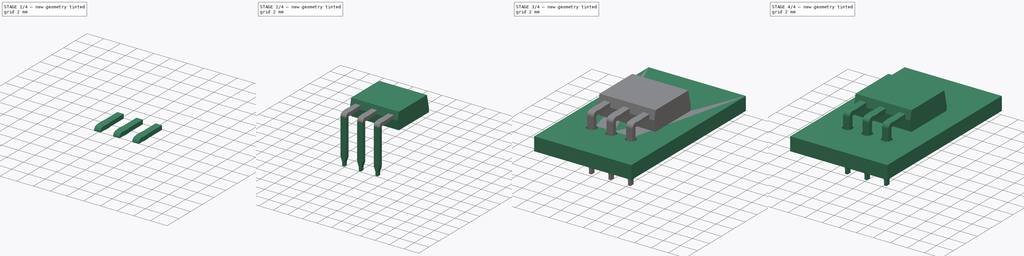
[diagram: build sequence overview — one tinted view per stage of 4, left to right]
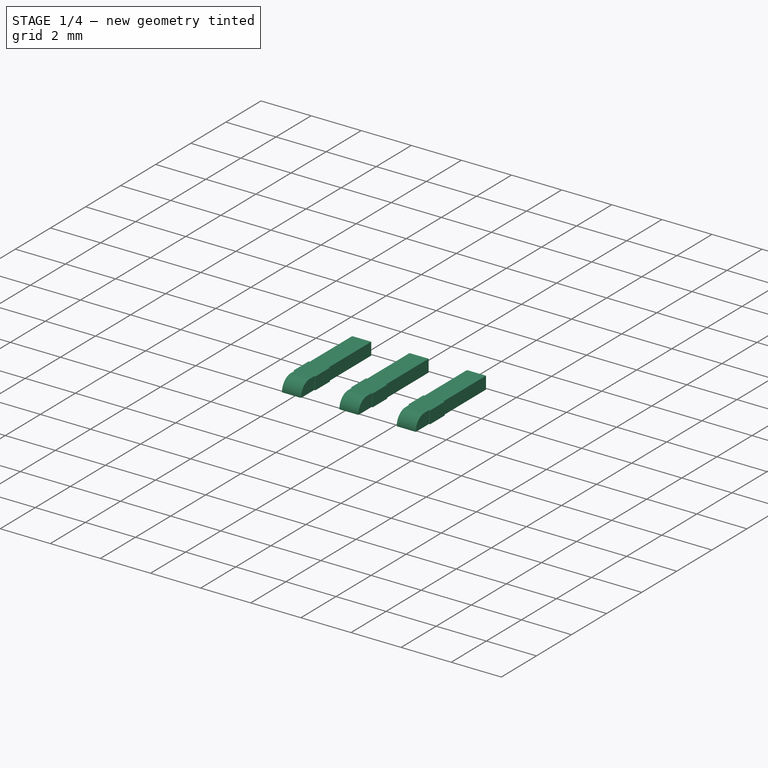
[diagram: stage 1 of 4 — iso view after this stage's code; geometry added in this stage tinted green]
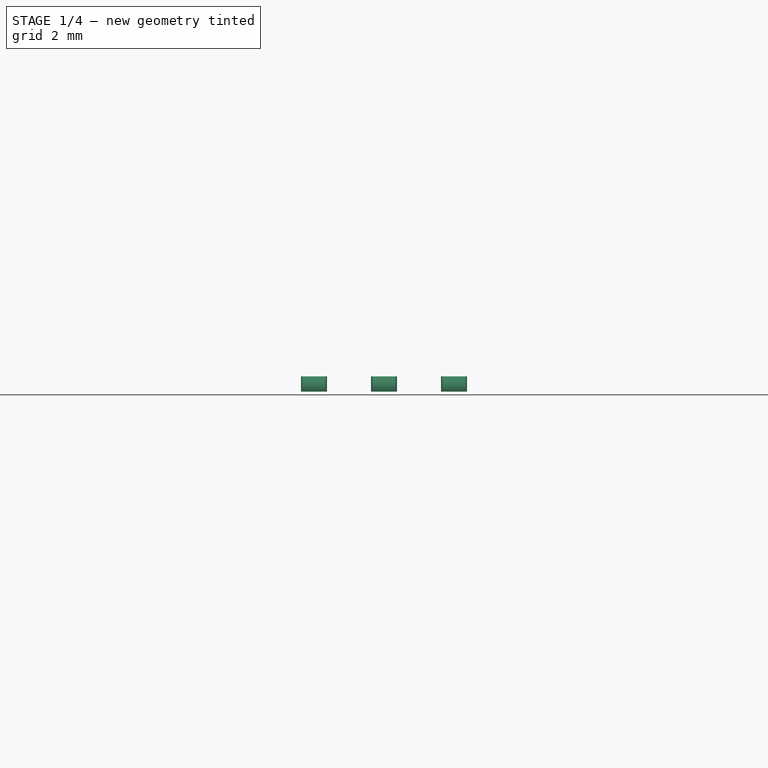
[diagram: stage 1 of 4 — front view after this stage's code; geometry added in this stage tinted green]
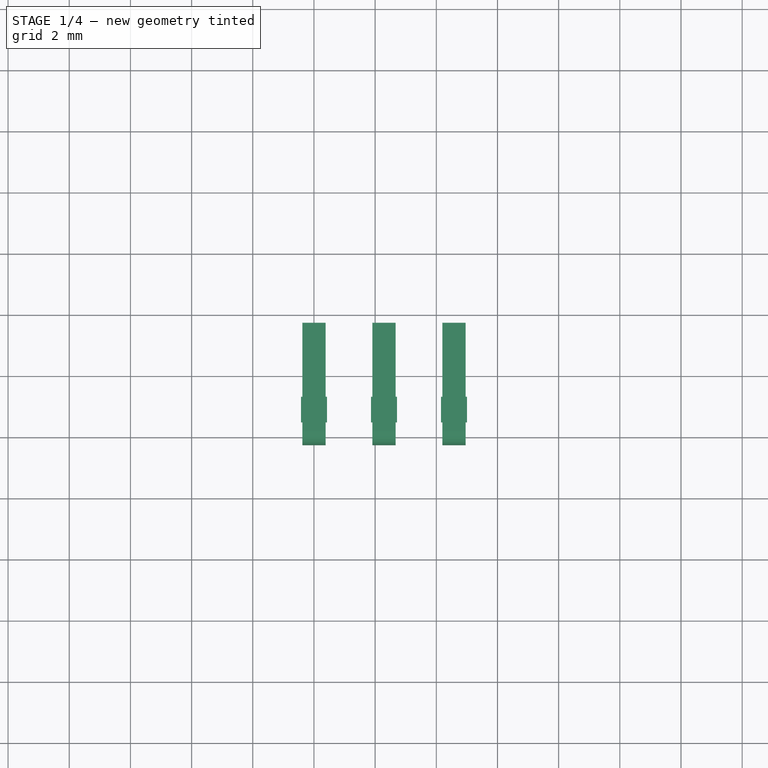
[diagram: stage 1 of 4 — top view after this stage's code; geometry added in this stage tinted green]
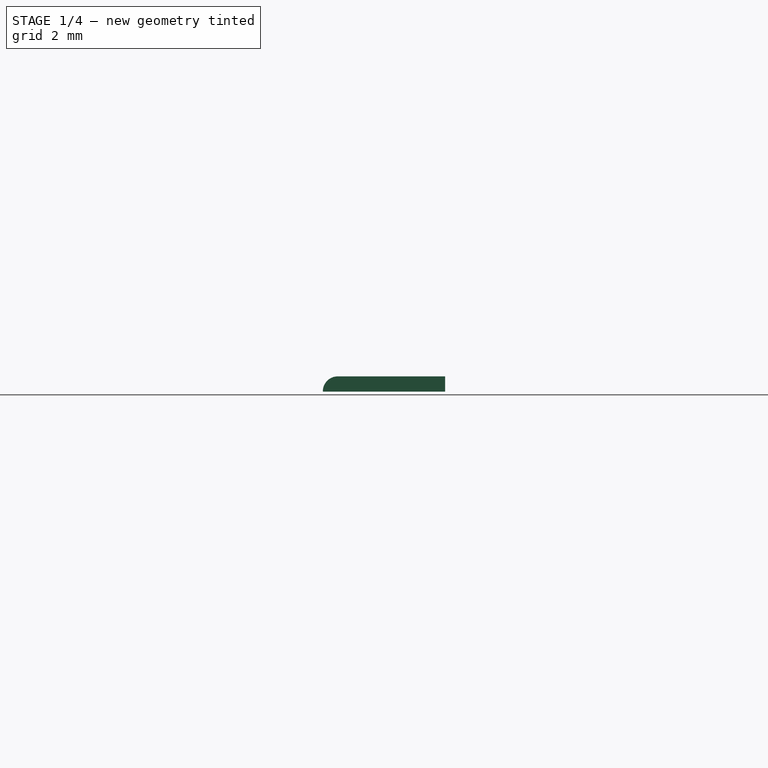
[diagram: stage 1 of 4 — right view after this stage's code; geometry added in this stage tinted green]
FCSTD DOCUMENT  (FreeCAD 0.16R6712 (Git))
Label: TO-251-3-1EP_Horizontal_TabDown
License: All rights reserved
LicenseURL: http://en.wikipedia.org/wiki/All_rights_reserved
objects: Part::FeaturePython×7, Sketcher::SketchObject×4, PartDesign::Pad×4, App::DocumentObjectGroup×1, PartDesign::Fillet×1, Part::MultiFuse×1
note: 21 computed .brp shape members not serialized (recipe doc carries the construction recipe); baked Part::Feature solids carry a one-line shape summary decoded from their .brp

FEATURE [App::DocumentObjectGroup] TO_251_3_1EP_Horizontal_TabDown_fp
  Group = -> [FCrtYd_lines,FFab_lines,Filk_lines,TopPads,BotPads,THPs,newPCB]
FEATURE [Sketcher::SketchObject] Sketch003
  Placement = pos=(0,0,1.27) rot=(0,0,1;3.14159rad)
  sketch-geometry (39):
    g0: LineSegment StartX=-4.96 StartY=0.25 StartZ=0 EndX=-4.2 EndY=0.25 EndZ=0
    g1: LineSegment StartX=-4.2 StartY=0.25 StartZ=0 EndX=-4.2 EndY=-0.5 EndZ=0
    g2: LineSegment StartX=-4.2 StartY=-3.75 StartZ=0 EndX=-4.96 EndY=-3.75 EndZ=0
    g3: LineSegment StartX=-4.96 StartY=-3.75 StartZ=0 EndX=-4.96 EndY=-1.33 EndZ=0
    g4: LineSegment StartX=-2.67 StartY=0.25 StartZ=0 EndX=-1.91 EndY=0.25 EndZ=0
    g5: LineSegment StartX=-1.91 StartY=0.25 StartZ=0 EndX=-1.91 EndY=-0.5 EndZ=0
    g6: LineSegment StartX=-1.91 StartY=-3.75 StartZ=0 EndX=-2.67 EndY=-3.75 EndZ=0
    g7: LineSegment StartX=-2.67 StartY=-3.75 StartZ=0 EndX=-2.67 EndY=-1.33 EndZ=0
    g8: LineSegment StartX=-0.38 StartY=0.25 StartZ=0 EndX=0.38 EndY=0.25 EndZ=0
    g9: LineSegment StartX=0.38 StartY=0.25 StartZ=0 EndX=0.38 EndY=-0.5 EndZ=0
    g10: LineSegment StartX=0.38 StartY=-3.75 StartZ=0 EndX=-0.38 EndY=-3.75 EndZ=0
    g11: LineSegment StartX=-0.38 StartY=-3.75 StartZ=0 EndX=-0.38 EndY=-1.33 EndZ=0
    g12: LineSegment StartX=-5.005 StartY=-0.5 StartZ=0 EndX=-4.96 EndY=-0.5 EndZ=0
    g13: LineSegment StartX=-4.155 StartY=-0.5 StartZ=0 EndX=-4.155 EndY=-1.33 EndZ=0
    g14: LineSegment StartX=-4.155 StartY=-1.33 StartZ=0 EndX=-4.2 EndY=-1.33 EndZ=0
    g15: LineSegment StartX=-5.005 StartY=-1.33 StartZ=0 EndX=-5.005 EndY=-0.5 EndZ=0
    g16: LineSegment StartX=-2.715 StartY=-0.5 StartZ=0 EndX=-2.67 EndY=-0.5 EndZ=0
    g17: LineSegment StartX=-1.865 StartY=-0.5 StartZ=0 EndX=-1.865 EndY=-1.33 EndZ=0
    g18: LineSegment StartX=-1.865 StartY=-1.33 StartZ=0 EndX=-1.91 EndY=-1.33 EndZ=0
    g19: LineSegment StartX=-2.715 StartY=-1.33 StartZ=0 EndX=-2.715 EndY=-0.5 EndZ=0
    g20: LineSegment StartX=-0.425 StartY=-0.5 StartZ=0 EndX=-0.38 EndY=-0.5 EndZ=0
    g21: LineSegment StartX=0.425 StartY=-0.5 StartZ=0 EndX=0.425 EndY=-1.33 EndZ=0
    g22: LineSegment StartX=0.425 StartY=-1.33 StartZ=0 EndX=0.38 EndY=-1.33 EndZ=0
    g23: LineSegment StartX=-0.425 StartY=-1.33 StartZ=0 EndX=-0.425 EndY=-0.5 EndZ=0
    g24: LineSegment StartX=0.38 StartY=-0.5 StartZ=0 EndX=0.425 EndY=-0.5 EndZ=0
    g25: LineSegment StartX=-1.91 StartY=-0.5 StartZ=0 EndX=-1.865 EndY=-0.5 EndZ=0
    g26: LineSegment StartX=-4.2 StartY=-0.5 StartZ=0 EndX=-4.155 EndY=-0.5 EndZ=0
    g27: LineSegment StartX=-4.96 StartY=-1.33 StartZ=0 EndX=-5.005 EndY=-1.33 EndZ=0
    g28: LineSegment StartX=-2.67 StartY=-1.33 StartZ=0 EndX=-2.715 EndY=-1.33 EndZ=0
    g29: LineSegment StartX=-0.38 StartY=-1.33 StartZ=0 EndX=-0.425 EndY=-1.33 EndZ=0
    g30: LineSegment StartX=0.38 StartY=-1.33 StartZ=0 EndX=0.38 EndY=-3.75 EndZ=0
    g31: LineSegment StartX=-0.38 StartY=-0.5 StartZ=0 EndX=-0.38 EndY=0.25 EndZ=0
    g32: LineSegment StartX=-1.91 StartY=-1.33 StartZ=0 EndX=-1.91 EndY=-3.75 EndZ=0
    g33: LineSegment StartX=-2.67 StartY=-0.5 StartZ=0 EndX=-2.67 EndY=0.25 EndZ=0
    g34: LineSegment StartX=-4.2 StartY=-1.33 StartZ=0 EndX=-4.2 EndY=-3.75 EndZ=0
    g35: LineSegment StartX=-4.96 StartY=-0.5 StartZ=0 EndX=-4.96 EndY=0.25 EndZ=0
    g36: LineSegment [constr] StartX=-4.2 StartY=0.25 StartZ=0 EndX=-2.67 EndY=0.25 EndZ=0
    g37: LineSegment [constr] StartX=-1.91 StartY=0.25 StartZ=0 EndX=-0.38 EndY=0.25 EndZ=0
    g38: LineSegment [constr] StartX=0 StartY=0.25 StartZ=0 EndX=0 EndY=0 EndZ=0
  constraints (103):
    c: Coincident(g0,g1)
    c: Coincident(g34,g2)
    c: Coincident(g2,g3)
    c: Coincident(g35,g0)
    c: Horizontal(g0)
    c: Horizontal(g2)
    c: Vertical(g1)
    c: Vertical(g3)
    c: Coincident(g4,g5)
    c: Coincident(g32,g6)
    c: Coincident(g6,g7)
    c: Coincident(g33,g4)
    c: Horizontal(g4)
    c: Horizontal(g6)
    c: Vertical(g5)
    c: Vertical(g7)
    c: Coincident(g8,g9)
    c: Coincident(g30,g10)
    c: Coincident(g10,g11)
    c: Coincident(g31,g8)
    c: Horizontal(g8)
    c: Horizontal(g10)
    c: Vertical(g9)
    c: Vertical(g11)
    c: Equal(g3,g7)
    c: Equal(g7,g11)
    c: DistanceY(g3,g35) = 4
    c: Coincident(g26,g13)
    c: Coincident(g13,g14)
    c: Coincident(g27,g15)
    c: Coincident(g15,g12)
    c: Horizontal(g12)
    c: Horizontal(g14)
    c: Vertical(g13)
    c: Vertical(g15)
    c: Coincident(g25,g17)
    c: Coincident(g17,g18)
    c: Coincident(g28,g19)
    c: Coincident(g19,g16)
    c: Horizontal(g16)
    c: Horizontal(g18)
    c: Vertical(g17)
    c: Vertical(g19)
    c: Coincident(g24,g21)
    c: Coincident(g21,g22)
    c: Coincident(g29,g23)
    c: Coincident(g23,g20)
    c: Horizontal(g20)
    c: Horizontal(g22)
    c: Vertical(g21)
    c: Vertical(g23)
    c: Tangent(g20,g24)
    c: Tangent(g16,g25)
    c: Tangent(g12,g26)
    c: Tangent(g14,g27)
    c: Tangent(g18,g28)
    c: Tangent(g22,g29)
    c: Coincident(g9,g24)
    c: Coincident(g30,g22)
    c: Tangent(g9,g30)
    c: Coincident(g11,g29)
    c: Coincident(g31,g20)
    c: Tangent(g11,g31)
    c: Coincident(g5,g25)
    c: Coincident(g32,g18)
    c: Tangent(g5,g32)
    c: Coincident(g7,g28)
    c: Coincident(g33,g16)
    c: Tangent(g7,g33)
    c: Coincident(g1,g26)
    c: Coincident(g34,g14)
    c: Tangent(g1,g34)
    c: Coincident(g3,g27)
    c: Coincident(g35,g12)
    c: Tangent(g3,g35)
    c: Equal(g26,g12)
    c: Equal(g12,g16)
    c: Equal(g16,g25)
    c: Equal(g25,g20)
    c: Equal(g20,g24)
    c: DistanceX(g15,g13) = 0.85
    c: DistanceY(g15,g15) = 0.83
    c: DistanceX(g0,g4) = 2.29
    c: DistanceX(g4,g8) = 2.29
    c: Coincident(g36,g0)
    c: Horizontal(g36)
    c: Coincident(g37,g4)
    c: Coincident(g37,g8)
    c: Horizontal(g37)
    c: Coincident(g4,g36)
    c: Equal(g19,g15)
    c: Equal(g15,g23)
    c: Equal(g31,g33)
    c: Equal(g33,g35)
    c: PointOnObject(g38,g8)
    c: Coincident(g38,g-1)
    c: Vertical(g38)
    c: Symmetric(g8,g8,g38)
    c: DistanceY(g38,g38) = 0.25
    c: DistanceY(g35,g35) = 0.75
    c: DistanceX(g0,g0) = 0.76
    c: Equal(g0,g4)
    c: Equal(g4,g8)
FEATURE [PartDesign::Pad] Pad003
  Length = 0.5
  Length2 = 100
  Placement = pos=(0,0,1.27) rot=(0,0,1;3.14159rad)
  Sketch = -> Sketch003
  Type = 0
FEATURE [PartDesign::Fillet] Fillet
  Base = -> Pad003 [Edge40,Edge76,Edge4]
  Placement = pos=(0,0,1.27) rot=(0,0,1;3.14159rad)
  Radius = 0.49
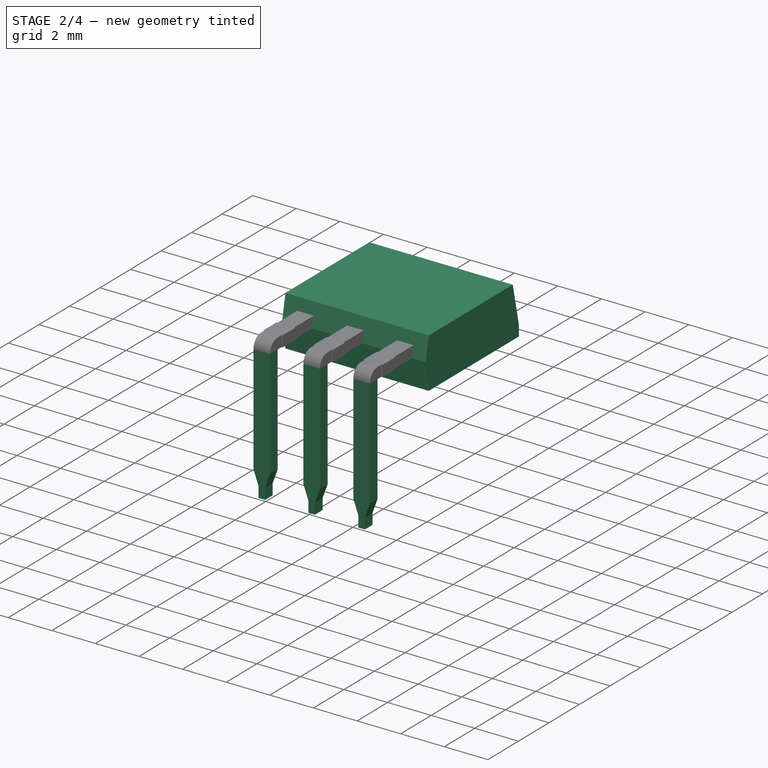
[diagram: stage 2 of 4 — iso view after this stage's code; geometry added in this stage tinted green]
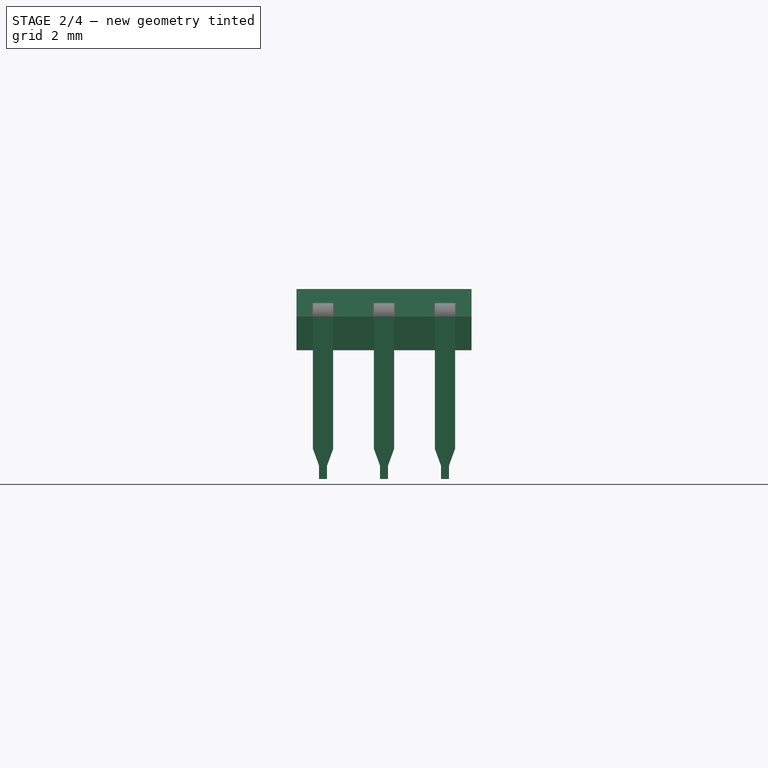
[diagram: stage 2 of 4 — front view after this stage's code; geometry added in this stage tinted green]
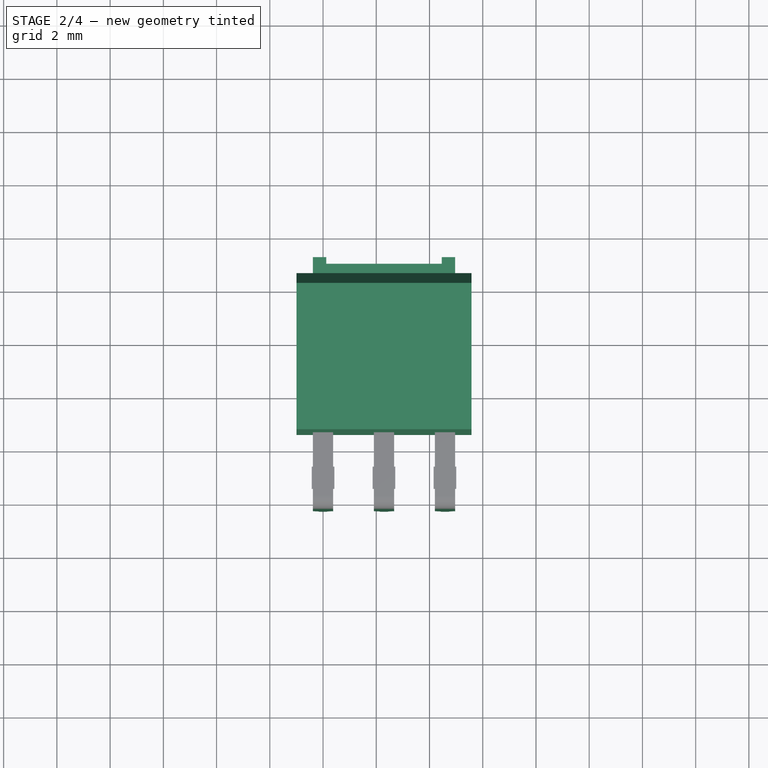
[diagram: stage 2 of 4 — top view after this stage's code; geometry added in this stage tinted green]
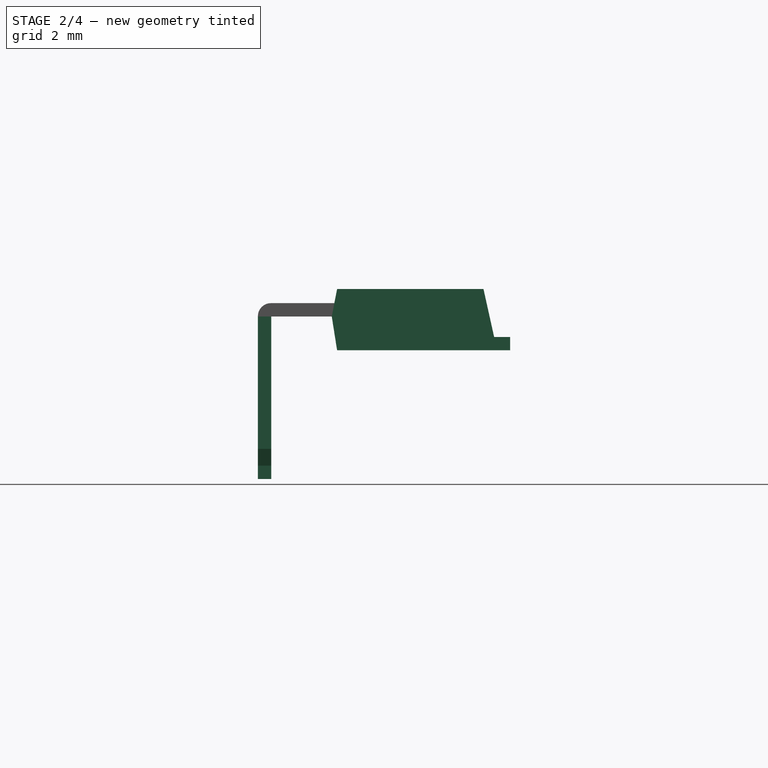
[diagram: stage 2 of 4 — right view after this stage's code; geometry added in this stage tinted green]
FEATURE [Sketcher::SketchObject] Sketch
  Placement = pos=(0,0,0) rot=(1,0,0;1.5708rad)
  sketch-geometry (40):
    g0: LineSegment StartX=0.38 StartY=1.27 StartZ=0 EndX=0.38 EndY=-3.70308 EndZ=0
    g1: LineSegment StartX=-0.38 StartY=-3.70308 StartZ=0 EndX=-0.38 EndY=1.27 EndZ=0
    g2: LineSegment StartX=0.15 StartY=-4.335 StartZ=0 EndX=0.15 EndY=-4.835 EndZ=0
    g3: LineSegment StartX=0.15 StartY=-4.835 StartZ=0 EndX=-0.15 EndY=-4.835 EndZ=0
    g4: LineSegment StartX=-0.15 StartY=-4.835 StartZ=0 EndX=-0.15 EndY=-4.335 EndZ=0
    g5: LineSegment StartX=-0.38 StartY=-3.70308 StartZ=0 EndX=-0.15 EndY=-4.335 EndZ=0
    g6: LineSegment StartX=0.38 StartY=-3.70308 StartZ=0 EndX=0.15 EndY=-4.335 EndZ=0
    g7: LineSegment [constr] StartX=0 StartY=-4.835 StartZ=0 EndX=0 EndY=1.27 EndZ=0
    g8: LineSegment [constr] StartX=-0.38 StartY=-3.70308 StartZ=0 EndX=0.38 EndY=-3.70308 EndZ=0
    g9: LineSegment [constr] StartX=-0.15 StartY=-4.335 StartZ=0 EndX=0.15 EndY=-4.335 EndZ=0
    g10: GeomPoint [constr] X=0 Y=-3.70308 Z=0
    g11: LineSegment StartX=2.67 StartY=1.27 StartZ=0 EndX=2.67 EndY=-3.70308 EndZ=0
    g12: LineSegment StartX=1.91 StartY=-3.70308 StartZ=0 EndX=1.91 EndY=1.27 EndZ=0
    g13: LineSegment StartX=2.44 StartY=-4.335 StartZ=0 EndX=2.44 EndY=-4.835 EndZ=0
    g14: LineSegment StartX=2.44 StartY=-4.835 StartZ=0 EndX=2.14 EndY=-4.835 EndZ=0
    g15: LineSegment StartX=2.14 StartY=-4.835 StartZ=0 EndX=2.14 EndY=-4.335 EndZ=0
    g16: LineSegment StartX=1.91 StartY=-3.70308 StartZ=0 EndX=2.14 EndY=-4.335 EndZ=0
    g17: LineSegment StartX=2.67 StartY=-3.70308 StartZ=0 EndX=2.44 EndY=-4.335 EndZ=0
    g18: LineSegment [constr] StartX=2.29 StartY=-4.835 StartZ=0 EndX=2.29 EndY=1.27 EndZ=0
    g19: LineSegment [constr] StartX=1.91 StartY=-3.70308 StartZ=0 EndX=2.67 EndY=-3.70308 EndZ=0
    g20: LineSegment [constr] StartX=2.14 StartY=-4.335 StartZ=0 EndX=2.44 EndY=-4.335 EndZ=0
    g21: GeomPoint [constr] X=2.29 Y=-3.70308 Z=0
    g22: LineSegment [constr] StartX=0 StartY=-4.835 StartZ=0 EndX=2.29 EndY=-4.835 EndZ=0
    g23: LineSegment StartX=4.96 StartY=1.27 StartZ=0 EndX=4.96 EndY=-3.70308 EndZ=0
    g24: LineSegment StartX=4.2 StartY=-3.70308 StartZ=0 EndX=4.2 EndY=1.27 EndZ=0
    g25: LineSegment StartX=4.73 StartY=-4.335 StartZ=0 EndX=4.73 EndY=-4.835 EndZ=0
    g26: LineSegment StartX=4.73 StartY=-4.835 StartZ=0 EndX=4.43 EndY=-4.835 EndZ=0
    g27: LineSegment StartX=4.43 StartY=-4.835 StartZ=0 EndX=4.43 EndY=-4.335 EndZ=0
    g28: LineSegment StartX=4.2 StartY=-3.70308 StartZ=0 EndX=4.43 EndY=-4.335 EndZ=0
    g29: LineSegment StartX=4.96 StartY=-3.70308 StartZ=0 EndX=4.73 EndY=-4.335 EndZ=0
    g30: LineSegment [constr] StartX=4.58 StartY=-4.835 StartZ=0 EndX=4.58 EndY=1.27 EndZ=0
    g31: LineSegment [constr] StartX=4.2 StartY=-3.70308 StartZ=0 EndX=4.96 EndY=-3.70308 EndZ=0
    g32: LineSegment [constr] StartX=4.43 StartY=-4.335 StartZ=0 EndX=4.73 EndY=-4.335 EndZ=0
    g33: GeomPoint [constr] X=4.58 Y=-3.70308 Z=0
    g34: LineSegment [constr] StartX=2.29 StartY=-4.835 StartZ=0 EndX=4.58 EndY=-4.835 EndZ=0
    g35: LineSegment [constr] StartX=0 StartY=1.27 StartZ=0 EndX=2.29 EndY=1.27 EndZ=0
    g36: LineSegment [constr] StartX=4.58 StartY=1.27 StartZ=0 EndX=2.29 EndY=1.27 EndZ=0
    g37: LineSegment StartX=0.38 StartY=1.27 StartZ=0 EndX=-0.38 EndY=1.27 EndZ=0
    g38: LineSegment StartX=1.91 StartY=1.27 StartZ=0 EndX=2.67 EndY=1.27 EndZ=0
    g39: LineSegment StartX=4.2 StartY=1.27 StartZ=0 EndX=4.96 EndY=1.27 EndZ=0
  constraints (107):
    c: Vertical(g0)
    c: Vertical(g1)
    c: Coincident(g2,g3)
    c: Coincident(g3,g4)
    c: Horizontal(g3)
    c: Vertical(g2)
    c: Vertical(g4)
    c: Coincident(g6,g0)
    c: Coincident(g1,g5)
    c: PointOnObject(g7,g3)
    c: Symmetric(g3,g3,g7)
    c: Coincident(g4,g5)
    c: Coincident(g2,g6)
    c: Coincident(g8,g1)
    c: Horizontal(g8)
    c: Coincident(g9,g4)
    c: Horizontal(g9)
    c: PointOnObject(g10,g7)
    c: Coincident(g2,g9)
    c: Symmetric(g8,g8,g10)
    c: DistanceX(g8,g8) = 0.76
    c: DistanceY(g7,g-1) = 4.835
    c: DistanceY(g4,g4) = 0.5
    c: DistanceX(g3,g3) = 0.3
    c: Angle(g0,g6) = 2.79253
    c: Coincident(g8,g0)
    c: Vertical(g11)
    c: Vertical(g12)
    c: Coincident(g13,g14)
    c: Coincident(g14,g15)
    c: Horizontal(g14)
    c: Vertical(g13)
    c: Vertical(g15)
    c: Coincident(g17,g11)
    c: Coincident(g12,g16)
    c: PointOnObject(g18,g14)
    c: Symmetric(g14,g14,g18)
    c: Coincident(g15,g16)
    c: Coincident(g13,g17)
    c: Coincident(g19,g12)
    c: Horizontal(g19)
    c: Coincident(g20,g15)
    c: Horizontal(g20)
    c: PointOnObject(g21,g18)
    c: Coincident(g13,g20)
    c: Symmetric(g19,g19,g21)
    c: Equal(g8,g19) = 0.76
    c: Equal(g4,g15) = 0.5
    c: Equal(g3,g14) = 0.3
    c: Coincident(g19,g11)
    c: Coincident(g22,g7)
    c: Coincident(g22,g18)
    c: Horizontal(g22)
    c: DistanceX(g22,g22) = 2.29
    c: Equal(g0,g11)
    c: DistanceX(g18,g33) = 2.29
    c: Vertical(g23)
    c: Vertical(g24)
    c: Coincident(g25,g26)
    c: Coincident(g26,g27)
    c: Horizontal(g26)
    c: Vertical(g25)
    c: Vertical(g27)
    c: Coincident(g29,g23)
    c: Coincident(g24,g28)
    c: PointOnObject(g30,g26)
    c: Symmetric(g26,g26,g30)
    c: Coincident(g27,g28)
    c: Coincident(g25,g29)
    c: Coincident(g31,g24)
    c: Horizontal(g31)
    c: Coincident(g32,g27)
    c: Horizontal(g32)
    c: PointOnObject(g33,g30)
    c: Coincident(g25,g32)
    c: Symmetric(g31,g31,g33)
    c: Coincident(g31,g23)
    c: Coincident(g34,g18)
    c: Coincident(g30,g34)
    c: Horizontal(g34)
    c: Equal(g15,g27)
    c: Equal(g24,g12)
    c: Equal(g28,g16)
    c: Equal(g32,g20)
    c: Vertical(g7)
    c: Vertical(g18)
    c: Vertical(g30)
    c: Coincident(g35,g7)
    c: Coincident(g35,g18)
    c: Horizontal(g35)
    c: Coincident(g36,g30)
    c: Coincident(g36,g18)
    c: Horizontal(g36)
    c: DistanceY(g-1,g7) = 1.27
    c: PointOnObject(g37,g35)
    c: Horizontal(g37)
    c: PointOnObject(g38,g35)
    c: PointOnObject(g38,g36)
    c: Horizontal(g39)
    c: Coincident(g23,g39)
    c: Coincident(g24,g39)
    c: Coincident(g12,g38)
    c: Coincident(g11,g38)
    c: PointOnObject(g30,g39)
    c: Coincident(g0,g37)
    c: Coincident(g1,g37)
    c: PointOnObject(g7,g-2)
FEATURE [PartDesign::Pad] Pad
  Length = 0.5
  Length2 = 100
  Midplane = true
  Placement = pos=(0,0,0) rot=(1,0,0;1.5708rad)
  Reversed = true
  Sketch = -> Sketch
  Type = 0
FEATURE [Sketcher::SketchObject] Sketch001
  Placement = pos=(2.29,0.3,1.27) rot=(0,1,0;1.5708rad)
  expr: Constraints[15] = (5.9 + 6.3) / 2
  sketch-geometry (7):
    g0: LineSegment StartX=0 StartY=2.225 StartZ=0 EndX=-1.03 EndY=2.425 EndZ=0
    g1: LineSegment StartX=-1.03 StartY=2.425 StartZ=0 EndX=-1.03 EndY=7.925 EndZ=0
    g2: LineSegment StartX=-1.03 StartY=7.925 StartZ=0 EndX=0.77 EndY=8.325 EndZ=0
    g3: LineSegment StartX=0.77 StartY=8.325 StartZ=0 EndX=1.27 EndY=8.325 EndZ=0
    g4: LineSegment StartX=1.27 StartY=8.325 StartZ=0 EndX=1.27 EndY=2.425 EndZ=0
    g5: LineSegment StartX=1.27 StartY=2.425 StartZ=0 EndX=0 EndY=2.225 EndZ=0
    g6: LineSegment [constr] StartX=-1.03 StartY=2.425 StartZ=0 EndX=1.27 EndY=2.425 EndZ=0
  constraints (20):
    c: PointOnObject(g0,g-2)
    c: Coincident(g1,g0)
    c: Vertical(g1)
    c: Coincident(g2,g1)
    c: Horizontal(g3)
    c: Coincident(g4,g3)
    c: Vertical(g4)
    c: Coincident(g5,g4)
    c: Coincident(g5,g0)
    c: Coincident(g6,g0)
    c: Coincident(g6,g4)
    c: Horizontal(g6)
    c: DistanceX(g0,g4) = 1.27
    c: DistanceX(g1,g3) = 2.3
    c: DistanceY(g0,g4) = 0.2
    c: DistanceY(g0,g3) = 6.1
    c: Coincident(g2,g3)
    c: DistanceY(g-1,g0) = 2.225
    c: DistanceX(g3,g3) = 0.5
    c: DistanceY(g1,g2) = 0.4
FEATURE [PartDesign::Pad] Pad001
  Length = 6.575
  Length2 = 100
  Midplane = true
  Placement = pos=(2.29,0.3,1.27) rot=(0,1,0;1.5708rad)
  Sketch = -> Sketch001
  Type = 0
  expr: Length = (6.35 + 6.8) / 2
FEATURE [Sketcher::SketchObject] Sketch002
  Placement = pos=(0,0.3,0) rot=(0,0,1;0rad)
  expr: Constraints[29] = (5.9 + 6.3) / 2 + (0.5 + 1.27) / 2 + (1.6 + 2.28) / 2
  sketch-geometry (11):
    g0: LineSegment StartX=4.96 StartY=8.925 StartZ=0 EndX=4.96 EndY=3.925 EndZ=0
    g1: LineSegment StartX=4.96 StartY=3.925 StartZ=0 EndX=-0.38 EndY=3.925 EndZ=0
    g2: LineSegment StartX=-0.38 StartY=3.925 StartZ=0 EndX=-0.38 EndY=8.925 EndZ=0
    g3: LineSegment StartX=-0.38 StartY=8.925 StartZ=0 EndX=0.12 EndY=8.925 EndZ=0
    g4: LineSegment StartX=0.12 StartY=8.925 StartZ=0 EndX=0.12 EndY=8.675 EndZ=0
    g5: LineSegment StartX=0.12 StartY=8.675 StartZ=0 EndX=4.46 EndY=8.675 EndZ=0
    g6: LineSegment StartX=4.46 StartY=8.675 StartZ=0 EndX=4.46 EndY=8.925 EndZ=0
    g7: LineSegment StartX=4.46 StartY=8.925 StartZ=0 EndX=4.96 EndY=8.925 EndZ=0
    g8: GeomPoint [constr] X=2.29 Y=8.925 Z=0
    g9: LineSegment [constr] StartX=2.29 StartY=8.925 StartZ=0 EndX=0 EndY=8.925 EndZ=0
    g10: LineSegment [constr] StartX=-0.38 StartY=8.925 StartZ=0 EndX=4.96 EndY=8.925 EndZ=0
  constraints (30):
    c: Coincident(g0,g1)
    c: Coincident(g1,g2)
    c: Horizontal(g1)
    c: Vertical(g0)
    c: Vertical(g2)
    c: Coincident(g4,g3)
    c: Coincident(g5,g4)
    c: Horizontal(g5)
    c: Coincident(g6,g5)
    c: Coincident(g7,g6)
    c: Vertical(g4)
    c: Vertical(g6)
    c: Symmetric(g2,g0,g8)
    c: Equal(g3,g7)
    c: Coincident(g9,g8)
    c: PointOnObject(g9,g-2)
    c: Horizontal(g9)
    c: PointOnObject(g3,g9)
    c: Coincident(g3,g2)
    c: Coincident(g7,g0)
    c: Coincident(g10,g2)
    c: Coincident(g10,g0)
    c: Horizontal(g10)
    c: DistanceX(g9,g9) = 2.29
    c: PointOnObject(g6,g10)
    c: DistanceX(g2,g0) = 5.34
    c: DistanceX(g7,g7) = 0.5
    c: DistanceY(g6,g6) = 0.25
    c: DistanceY(g0,g0) = 5
    c: DistanceY(g-1,g2) = 8.925
FEATURE [PartDesign::Pad] Pad002
  Length = 0.5
  Length2 = 100
  Placement = pos=(0,0.3,0) rot=(0,0,1;0rad)
  Sketch = -> Sketch002
  Type = 0
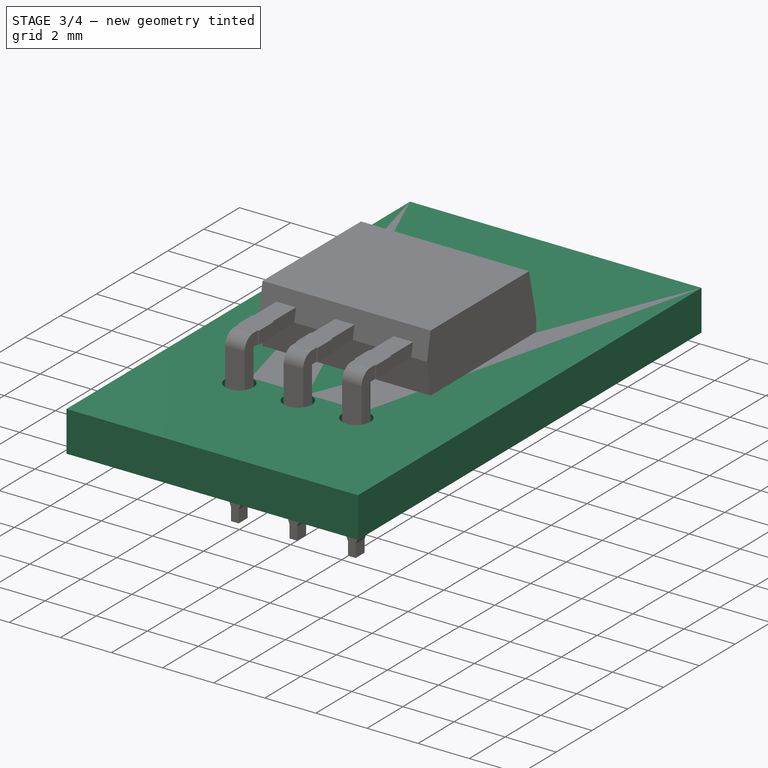
[diagram: stage 3 of 4 — iso view after this stage's code; geometry added in this stage tinted green]
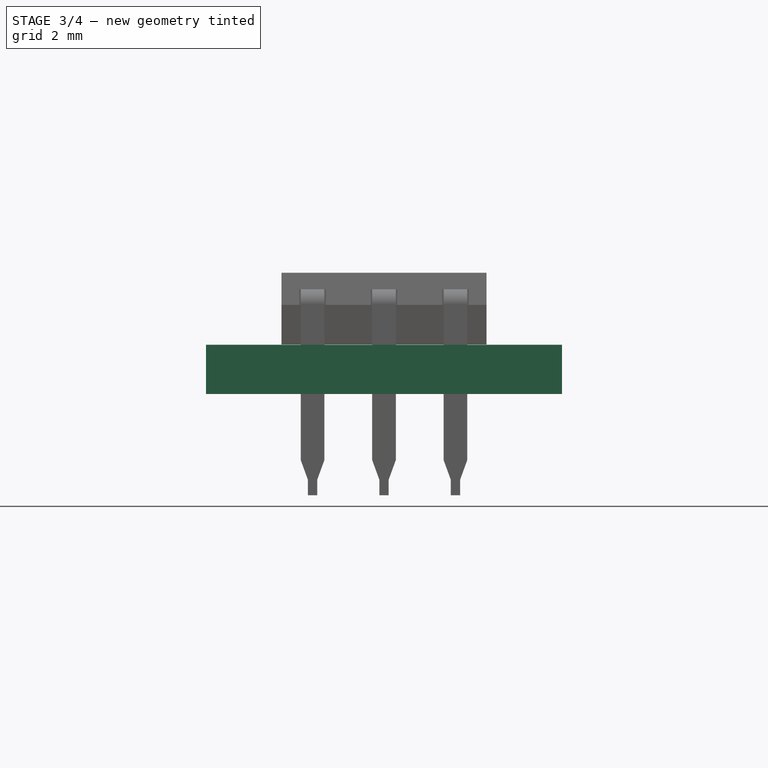
[diagram: stage 3 of 4 — front view after this stage's code; geometry added in this stage tinted green]
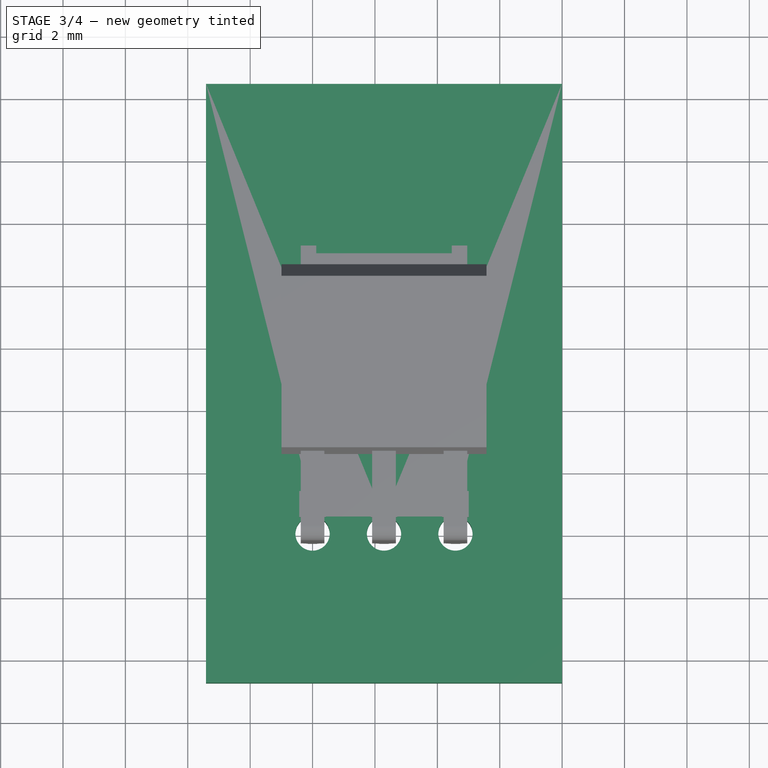
[diagram: stage 3 of 4 — top view after this stage's code; geometry added in this stage tinted green]
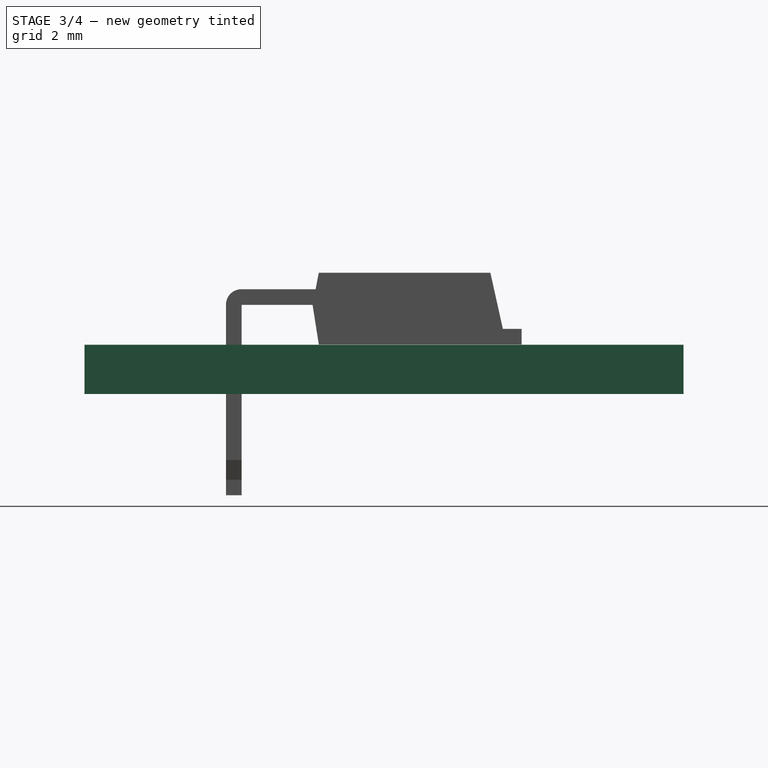
[diagram: stage 3 of 4 — right view after this stage's code; geometry added in this stage tinted green]
FEATURE [Part::FeaturePython] THPs  label="PTHs"  # a2plus imported part (geometry in sourceFile) (typed FeaturePython)
  fixedPosition = true
FEATURE [Part::FeaturePython] newPCB  label="Pcb"  # a2plus imported part (geometry in sourceFile) (typed FeaturePython)
  fixedPosition = true
FEATURE [Part::MultiFuse] Pad001_mp_cp  label="TO-251-3-1EP_Horizontal_TabDown"
  Shapes = -> [Pad001,Pad,Pad002,Fillet]
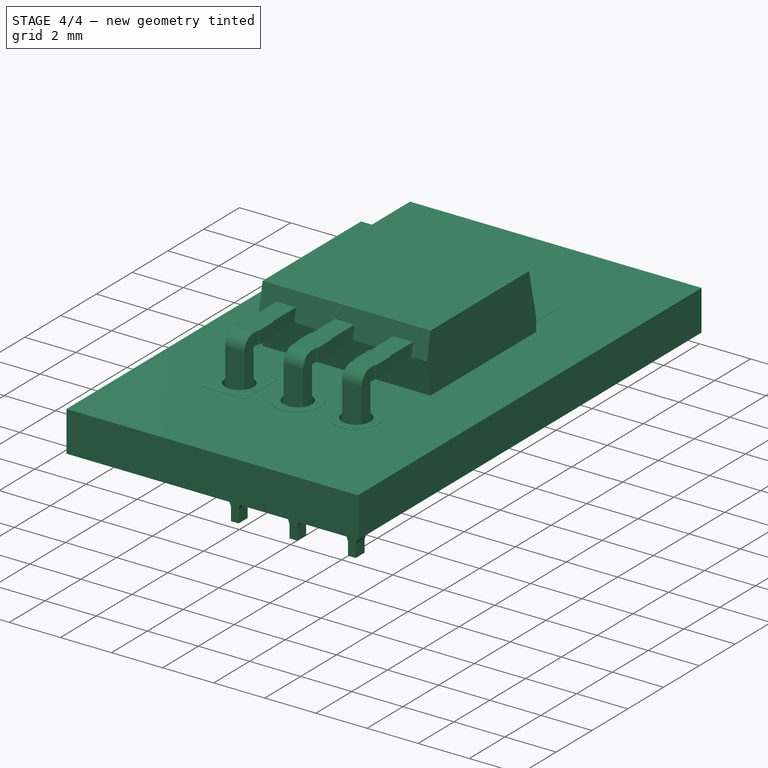
[diagram: stage 4 of 4 — iso view after this stage's code; geometry added in this stage tinted green]
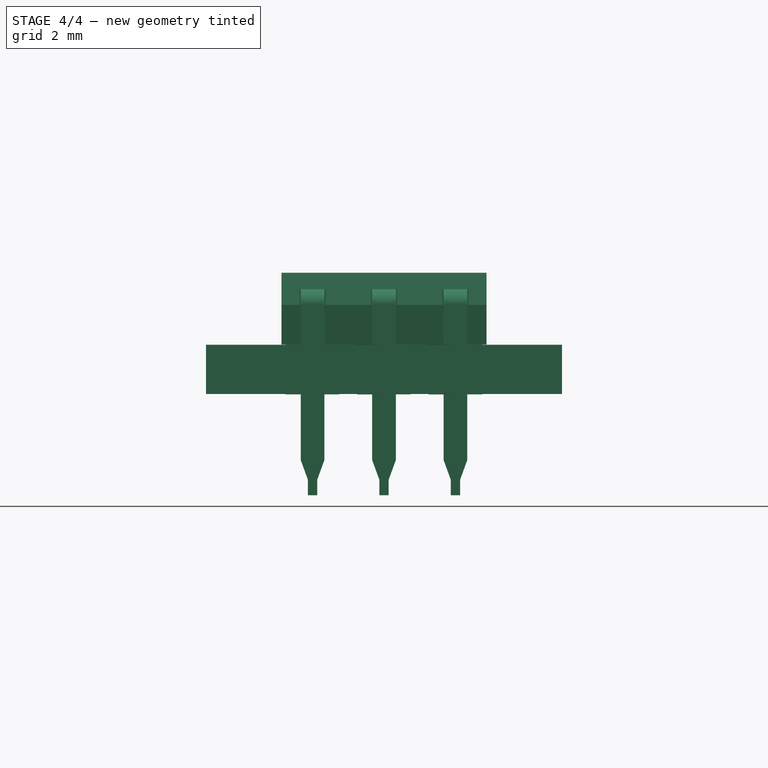
[diagram: stage 4 of 4 — front view after this stage's code; geometry added in this stage tinted green]
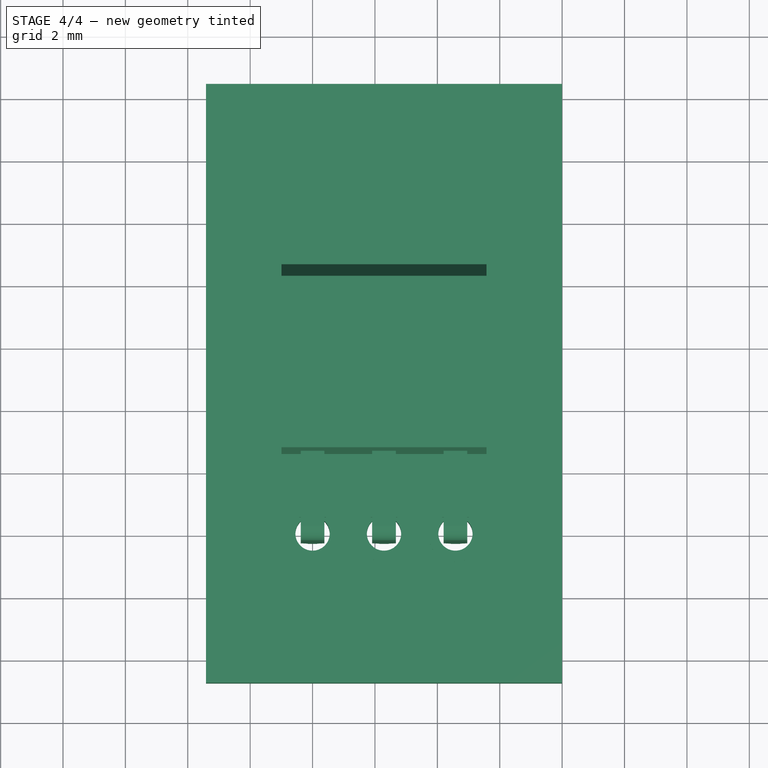
[diagram: stage 4 of 4 — top view after this stage's code; geometry added in this stage tinted green]
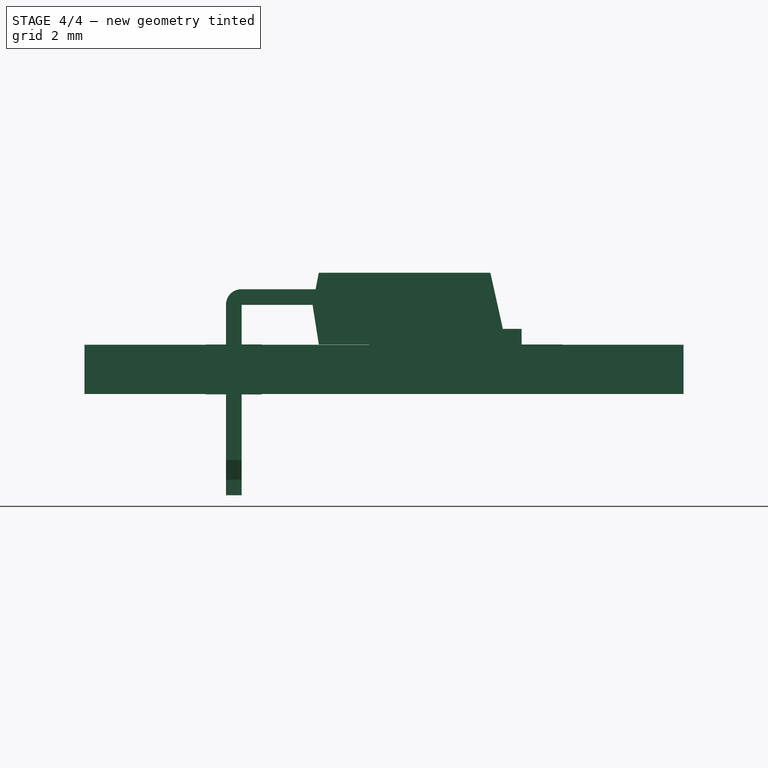
[diagram: stage 4 of 4 — right view after this stage's code; geometry added in this stage tinted green]
FEATURE [Part::FeaturePython] FCrtYd_lines  label="FCrtYd"  # a2plus imported part (geometry in sourceFile) (typed FeaturePython)
  fixedPosition = true
FEATURE [Part::FeaturePython] FFab_lines  label="FFab"  # a2plus imported part (geometry in sourceFile) (typed FeaturePython)
  fixedPosition = true
FEATURE [Part::FeaturePython] Filk_lines  label="FrontSilk"  # a2plus imported part (geometry in sourceFile) (typed FeaturePython)
  fixedPosition = true
FEATURE [Part::FeaturePython] TopPads  # a2plus imported part (geometry in sourceFile) (typed FeaturePython)
  fixedPosition = true
FEATURE [Part::FeaturePython] BotPads  # a2plus imported part (geometry in sourceFile) (typed FeaturePython)
  fixedPosition = true
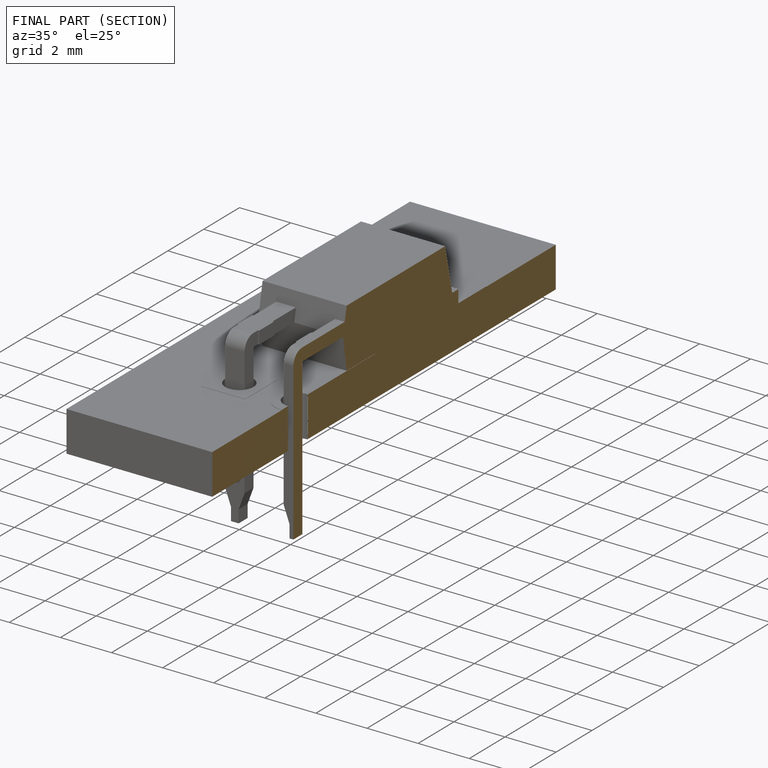
[diagram: finished part — half-section view (interior)]
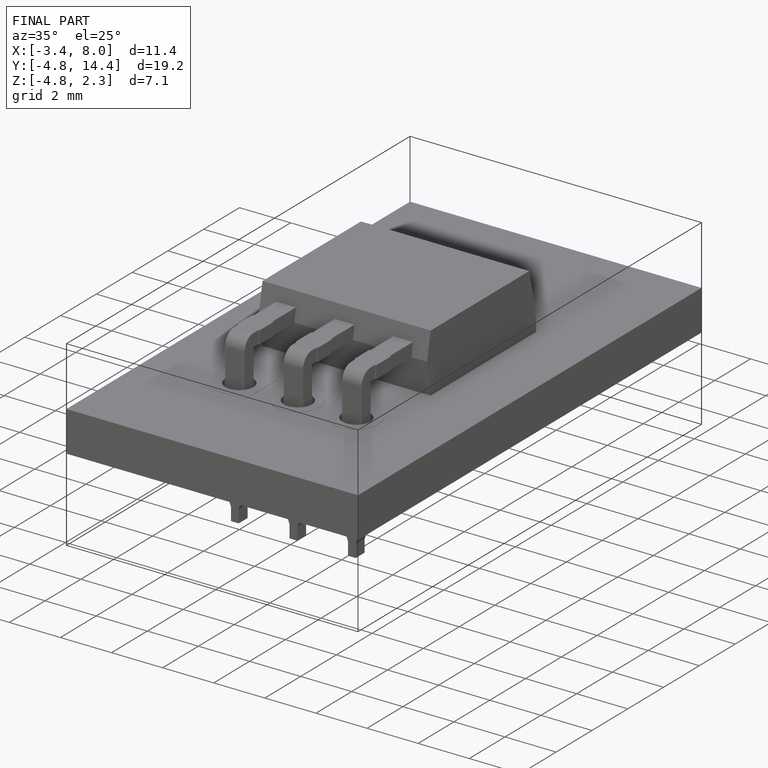
[diagram: finished part — iso view with bounding-box wireframe]
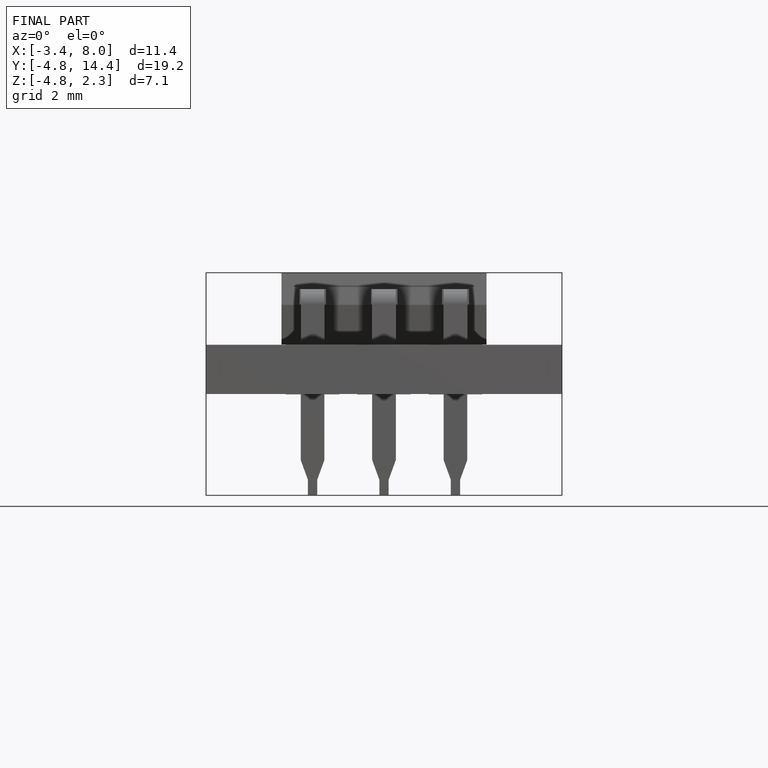
[diagram: finished part — front view with bounding-box wireframe]
